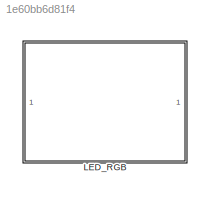
MODEL slx_1e60bb6d81f4
KIND library
CONFIG AbsTol = auto
CONFIG EnableMultiTasking = off
CONFIG FixedStep = auto
CONFIG MaxStep = auto
CONFIG MinStep = auto
CONFIG RelTol = 1e-3
CONFIG SampleTimeConstraint = Unconstrained
CONFIG SolverName = VariableStepAuto
CONFIG StartTime = 0.0
CONFIG StopTime = 10.0
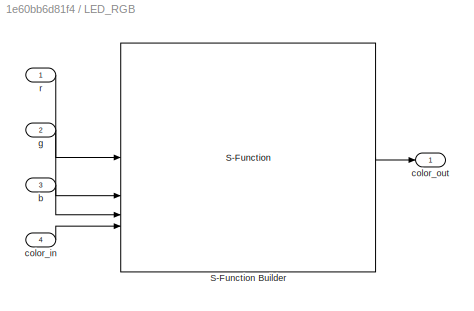
BLOCK [SubSystem] LED_RGB
BLOCK [S-Function] LED_RGB/S-Function Builder
  CopyFcn = set_param(gcbh,'LinkStatus','none')
  EnableBusSupport = off
  FunctionName = func_rgb
  OpenFcn = sfunctionwizard(gcbh)
  SFcnIsStateOwnerBlock = off
  SFunctionDeploymentMode = off
  SFunctionModules = func_rgb_wrapper.cpp
BLOCK [Inport] LED_RGB/b
  Port = 3
BLOCK [Inport] LED_RGB/color_in
  Port = 4
BLOCK [Outport] LED_RGB/color_out
BLOCK [Inport] LED_RGB/g
  Port = 2
BLOCK [Inport] LED_RGB/r
LINE LED_RGB/S-Function Builder:1 -> LED_RGB/color_out:1
LINE LED_RGB/b:1 -> LED_RGB/S-Function Builder:3
LINE LED_RGB/color_in:1 -> LED_RGB/S-Function Builder:4
LINE LED_RGB/g:1 -> LED_RGB/S-Function Builder:2
LINE LED_RGB/r:1 -> LED_RGB/S-Function Builder:1
